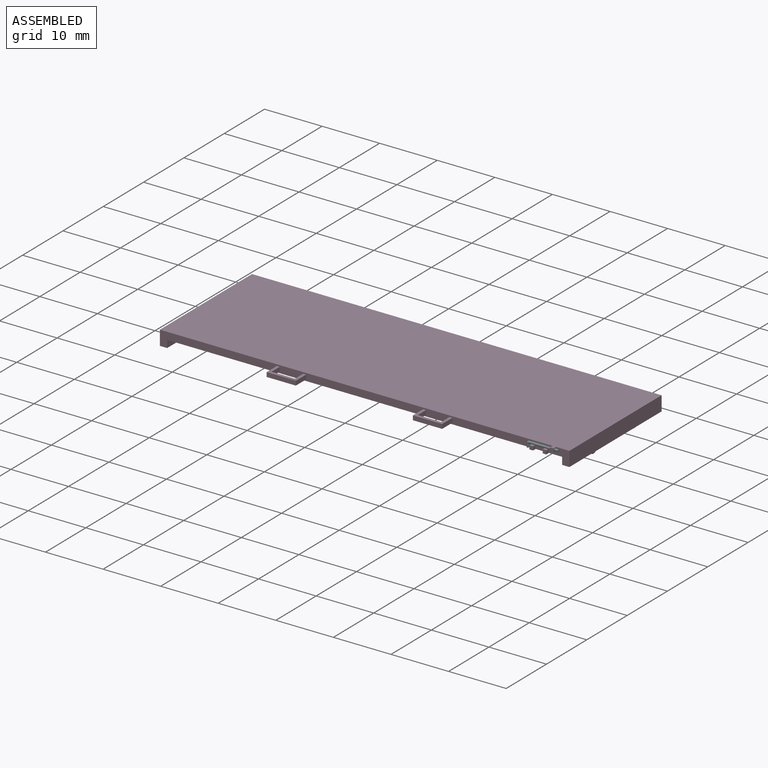
[diagram: assembled view]
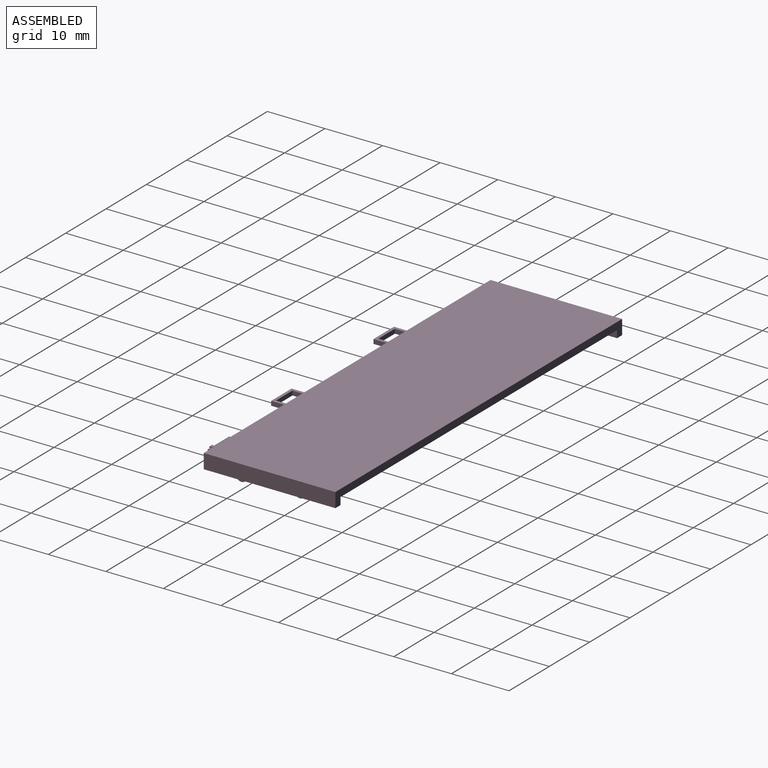
[diagram: assembled view, second angle]
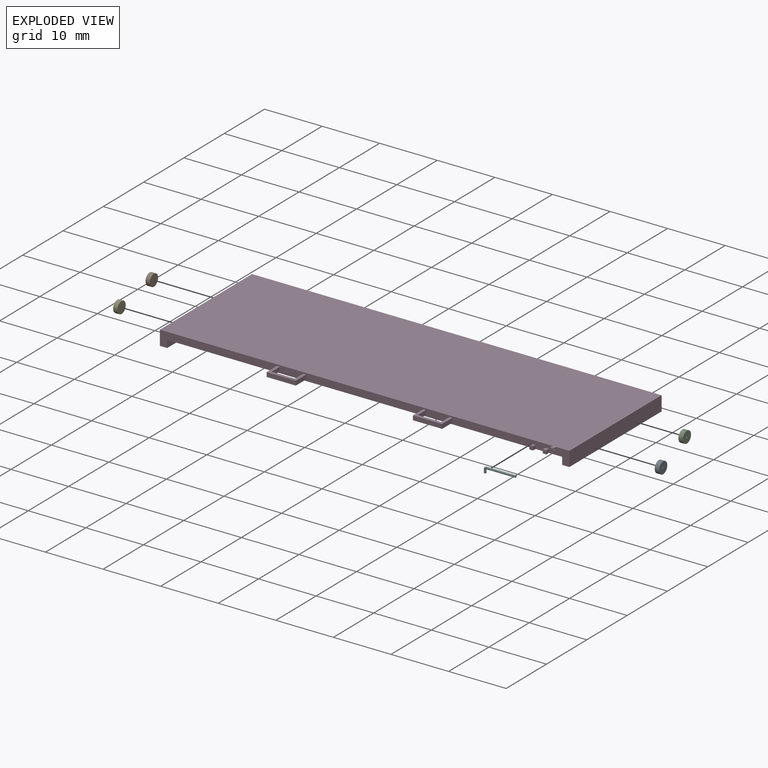
[diagram: exploded view]
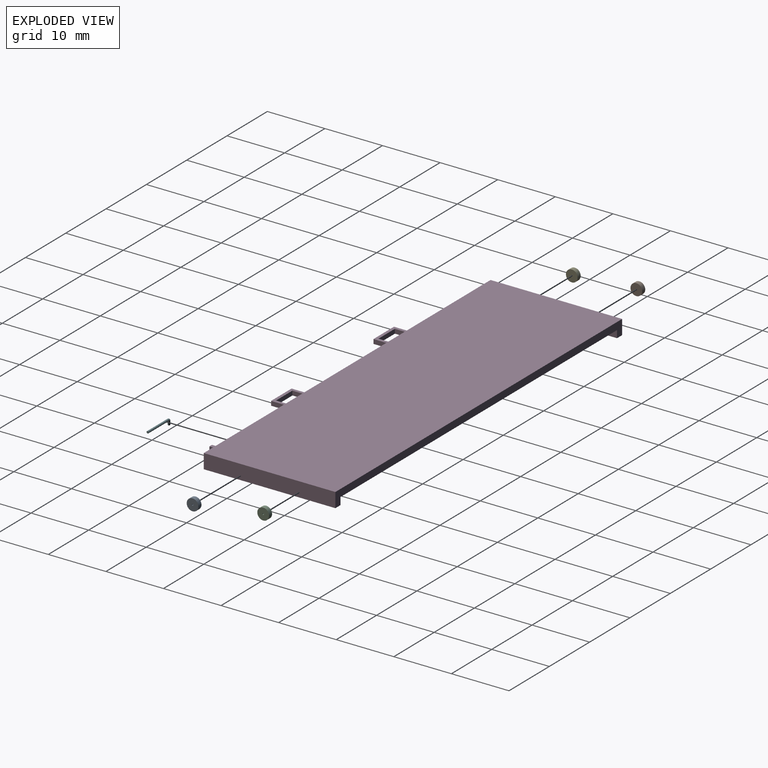
[diagram: exploded view, second angle]
ASSEMBLY  parts=6 mates=5
PART A: 4 faces, bbox 0.8x2x2 mm
  f0: cylinder r=1.02mm len=2.03mm, axis (-1,0,0), area 4.9mm2, adj f1,f2
  f1: plane 2.03x2.03mm, normal (1,0,0), area 3.2mm2, adj f0,f3
  f2: plane 2.03x2.03mm, normal (-1,0,0), area 3.2mm2, adj f0,f3
  f3: cylinder r=0.13mm len=0.76mm, axis (1,0,0), area 0.6mm2, adj f1,f2
PART B: same geometry as A
PART C: same geometry as A
PART D: 53 faces, bbox 71.1x25.4x2.5 mm
  f0: plane 71.12x2.54mm, normal (0,-1,0), area 90.8mm2, adj f1,f2,f3,f4,f5,f7,f8,f9
  f1: plane 5.08x2.54mm, normal (0,0,-1), area 4.6mm2, adj f0,f28,f29,f30,f37,f38,f39
  f2: plane 5.08x2.54mm, normal (0,0,1), area 4.6mm2, adj f0,f28,f29,f30,f37,f38,f39
  f3: plane 5.08x2.54mm, normal (0,0,-1), area 4.6mm2, adj f0,f31,f32,f33,f34,f35,f36
  f4: plane 5.08x2.54mm, normal (0,0,1), area 4.6mm2, adj f0,f31,f32,f33,f34,f35,f36
  f5: plane 22.86x1.27mm, normal (0,0,-1), area 12mm2, adj f0,f6,f10,f11,f14,f15,f16,f17
  f6: plane 71.12x2.54mm, normal (0,1,0), area 93.5mm2, adj f5,f7,f8,f9,f10,f11,f12,f13
  f7: plane 71.12x23.5mm, normal (0,0,1), area 1626.2mm2, adj f0,f6,f8,f10,f40,f41,f43
  f8: plane 22.86x2.54mm, normal (-1,0,0), area 58.1mm2, adj f0,f6,f7,f9
  f9: plane 22.86x1.27mm, normal (0,0,-1), area 12mm2, adj f0,f6,f8,f13,f19,f20,f21,f22
  f10: plane 22.86x2.54mm, normal (1,0,0), area 58.1mm2, adj f0,f5,f6,f7
  f11: plane 22.86x1.27mm, normal (-1,0,0), area 29mm2, adj f0,f5,f6,f12
  f12: plane 68.58x23.5mm, normal (0,0,-1), area 1568.5mm2, adj f0,f6,f11,f13,f44,f46,f47,f48
  f13: plane 22.86x1.27mm, normal (1,0,0), area 29mm2, adj f0,f6,f9,f12
  f14: plane 22.35x1.91mm, normal (1,0,0), area 42.5mm2, adj f5,f15,f17,f18,f24,f25
  f15: plane 1.91x0.76mm, normal (0,-1,0), area 1.5mm2, adj f5,f14,f16,f18
  f16: plane 22.35x1.91mm, normal (-1,0,0), area 42.5mm2, adj f5,f15,f17,f18,f24,f25
  f17: plane 1.91x0.76mm, normal (0,1,0), area 1.5mm2, adj f5,f14,f16,f18
  f18: plane 22.35x0.76mm, normal (0,0,-1), area 17mm2, adj f14,f15,f16,f17
  f19: plane 22.35x1.91mm, normal (1,0,0), area 42.5mm2, adj f9,f20,f22,f23,f26,f27
  f20: plane 1.91x0.76mm, normal (0,-1,0), area 1.5mm2, adj f9,f19,f21,f23
  f21: plane 22.35x1.91mm, normal (-1,0,0), area 42.5mm2, adj f9,f20,f22,f23,f26,f27
  f22: plane 1.91x0.76mm, normal (0,1,0), area 1.5mm2, adj f9,f19,f21,f23
  f23: plane 22.35x0.76mm, normal (0,0,-1), area 17mm2, adj f19,f20,f21,f22
  f24: cylinder r=0.13mm len=0.76mm, axis (1,0,0), area 0.6mm2, adj f14,f16
  f25: cylinder r=0.13mm len=0.76mm, axis (1,0,0), area 0.6mm2, adj f14,f16
  f26: cylinder r=0.13mm len=0.76mm, axis (1,0,0), area 0.6mm2, adj f19,f21
  f27: cylinder r=0.13mm len=0.76mm, axis (1,0,0), area 0.6mm2, adj f19,f21
  f28: plane 2.54x0.76mm, normal (-1,0,0), area 1.9mm2, adj f0,f1,f2,f30
  f29: plane 2.54x0.76mm, normal (1,0,0), area 1.9mm2, adj f0,f1,f2,f30
  f30: plane 5.08x0.76mm, normal (0,-1,0), area 3.9mm2, adj f1,f2,f28,f29
  f31: plane 2.54x0.76mm, normal (-1,0,0), area 1.9mm2, adj f0,f3,f4,f33
  f32: plane 2.54x0.76mm, normal (1,0,0), area 1.9mm2, adj f0,f3,f4,f33
  f33: plane 5.08x0.76mm, normal (0,-1,0), area 3.9mm2, adj f3,f4,f31,f32
  f34: plane 2.03x0.76mm, normal (-1,0,0), area 1.5mm2, adj f0,f3,f4,f36
  f35: plane 2.03x0.76mm, normal (1,0,0), area 1.5mm2, adj f0,f3,f4,f36
  f36: plane 4.06x0.76mm, normal (0,1,0), area 3.1mm2, adj f3,f4,f34,f35
  f37: plane 2.03x0.76mm, normal (-1,0,0), area 1.5mm2, adj f0,f1,f2,f39
  f38: plane 2.03x0.76mm, normal (1,0,0), area 1.5mm2, adj f0,f1,f2,f39
  f39: plane 4.06x0.76mm, normal (0,1,0), area 3.1mm2, adj f1,f2,f37,f38
  f40: plane 0.64x0.64mm, normal (1,0,0), area 0.3mm2, adj f0,f7,f42,f43,f52
  f41: plane 0.64x0.64mm, normal (-1,0,0), area 0.3mm2, adj f0,f7,f42,f43,f52
  f42: plane 0.64x0.64mm, normal (0,0,-1), area 0.4mm2, adj f0,f40,f41,f43
  f43: plane 0.64x0.64mm, normal (0,-1,0), area 0.4mm2, adj f7,f40,f41,f42
  f44: plane 0.64x0.64mm, normal (1,0,0), area 0.4mm2, adj f0,f12,f45,f47
  f45: plane 0.64x0.64mm, normal (0,0,1), area 0.4mm2, adj f0,f44,f46,f47
  f46: plane 0.64x0.64mm, normal (-1,0,0), area 0.4mm2, adj f0,f12,f45,f47
  f47: plane 0.64x0.64mm, normal (0,-1,0), area 0.4mm2, adj f12,f44,f45,f46
  f48: plane 0.64x0.64mm, normal (1,0,0), area 0.4mm2, adj f0,f12,f49,f51
  f49: plane 0.64x0.64mm, normal (0,0,1), area 0.4mm2, adj f0,f48,f50,f51
  f50: plane 0.64x0.64mm, normal (-1,0,0), area 0.4mm2, adj f0,f12,f49,f51
  f51: plane 0.64x0.64mm, normal (0,-1,0), area 0.4mm2, adj f12,f48,f49,f50
  f52: cylinder r=0.19mm len=0.64mm, axis (1,0,0), area 0.8mm2, adj f40,f41
PART E: same geometry as A
PART F: 5 faces, bbox 5.5x0.4x1.1 mm
  f0: plane 0.38x0.38mm, normal (0,0,-1), area 0.1mm2, adj f2
  f1: plane 0.38x0.38mm, normal (1,0,0), area 0.1mm2, adj f4
  f2: cylinder r=0.19mm len=0.64mm, axis (0,0,1), area 0.8mm2, adj f0,f3
  f3: torus R=0.22mm, axis (0,1,0), area 0.4mm2, adj f2,f4
  f4: cylinder r=0.19mm len=5.08mm, axis (1,0,0), area 6.1mm2, adj f1,f3
PLACE A rot(axis=(-1,0,0),141.6deg) t=(35.86,-0.11,-8.95)mm
PLACE B t=(-33.99,10.05,-8.95)mm
PLACE C rot(axis=(1,0,0),74.3deg) t=(35.86,10.05,-8.83)mm
PLACE D t=(-11.56,16.4,-30.41)mm fixed
PLACE E t=(-33.99,-0.11,-8.95)mm
PLACE F rot(axis=(0,1,0),0.2deg) t=(29.52,-6.78,-8.2)mm
MATE revolute E.f3 <-> D.f24  axis (1,0,0) through (-33.99,-0.11,-8.95)mm
MATE revolute D.f25 <-> C.f3  axis (1,0,0) through (35.86,10.05,-8.83)mm
MATE slider D.f52 <-> F.f4  axis (1,0,0) through (34.2,-6.78,-7.35)mm
MATE revolute B.f3 <-> D.f27  axis (1,0,0) through (-33.99,10.05,-8.95)mm
MATE revolute A.f3 <-> D.f24  axis (1,0,0) through (35.86,-0.11,-8.95)mm
